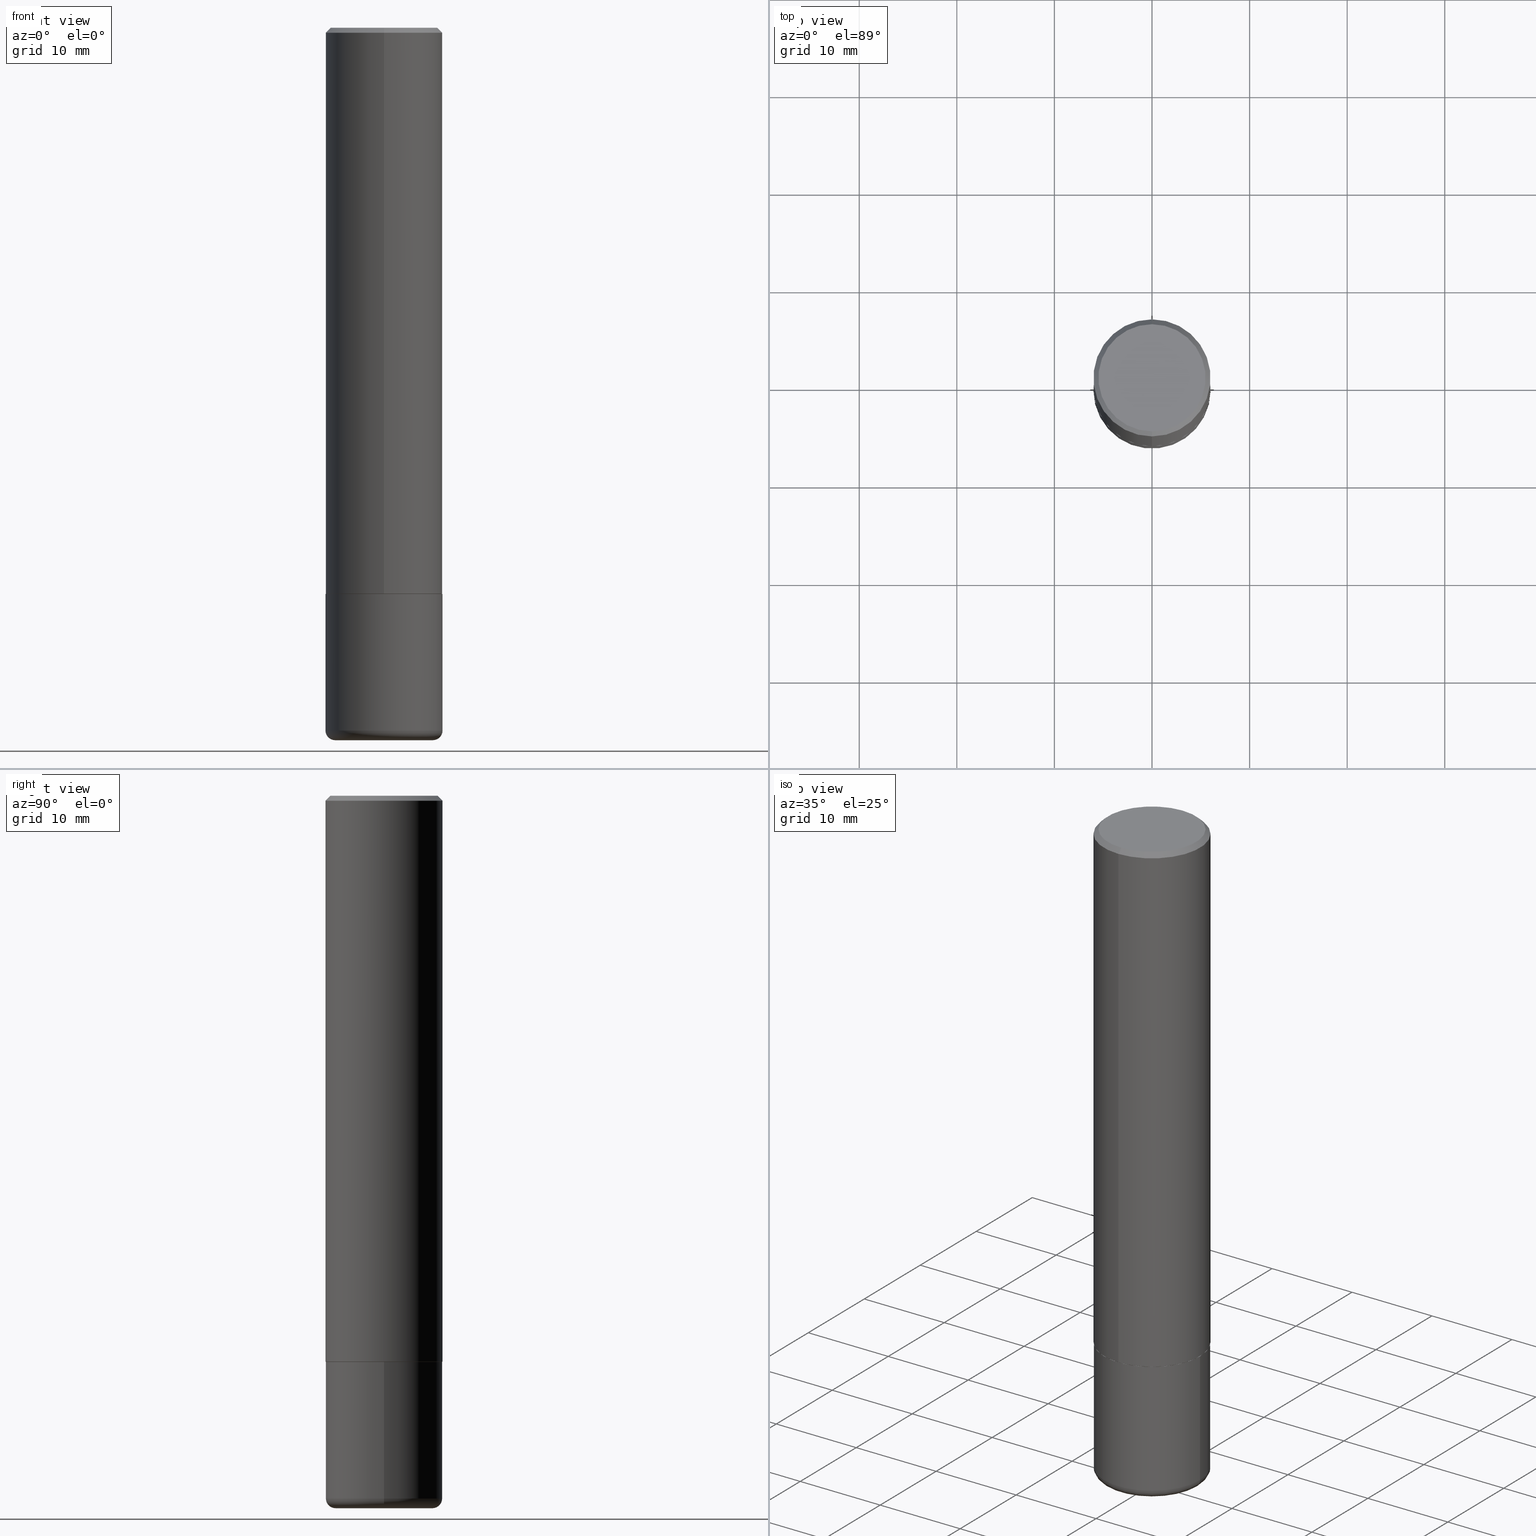
[diagram: canonical four-view strip — front | top / right | iso, engineering-drawing reading convention]
A machine part, canonical four-view strip (front | top / right | iso — engineering-drawing reading convention). The complete STEP part file that produces these views, byte-faithful:
ISO-10303-21;
HEADER;
FILE_DESCRIPTION (( 'STEP AP203' ),
    '1' );
FILE_NAME ('48011.STEP',
    '2024-03-06T19:45:03',
    ( '' ),
    ( '' ),
    'SwSTEP 2.0',
    'SolidWorks 2023',
    '' );
FILE_SCHEMA (( 'CONFIG_CONTROL_DESIGN' ));
ENDSEC;

DATA;
#1 = VERTEX_POINT ( 'NONE', #398 ) ;
#2 = DIRECTION ( 'NONE',  ( -6.982962677686265133E-15, -1.000000000000000000, 3.484499991918703113E-15 ) ) ;
#3 = DIRECTION ( 'NONE',  ( -2.446091145215684809E-29, 3.490590113930062596E-15, 1.000000000000000000 ) ) ;
#4 = ORIENTED_EDGE ( 'NONE', *, *, #369, .T. ) ;
#5 = CONICAL_SURFACE ( 'NONE', #378, 0.2361999999999999655, 0.7853981633974469467 ) ;
#6 = AXIS2_PLACEMENT_3D ( 'NONE', #11, #265, #387 ) ;
#7 = ADVANCED_FACE ( 'NONE', ( #331 ), #397, .T. ) ;
#8 = FACE_OUTER_BOUND ( 'NONE', #233, .T. ) ;
#9 = DIRECTION ( 'NONE',  ( -2.445468806185136597E-29, 3.491481338843145583E-15, 1.000000000000000000 ) ) ;
#10 = DATE_AND_TIME ( #190, #290 ) ;
#11 = CARTESIAN_POINT ( 'NONE',  ( 6.931925878012387517E-29, -9.896953003084780885E-15, -2.834600000000000009 ) ) ;
#12 = ORIENTED_EDGE ( 'NONE', *, *, #123, .F. ) ;
#13 = EDGE_CURVE ( 'NONE', #127, #279, #62, .T. ) ;
#14 = AXIS2_PLACEMENT_3D ( 'NONE', #66, #351, #258 ) ;
#15 = COORDINATED_UNIVERSAL_TIME_OFFSET ( 5, 0, .BEHIND. ) ;
#16 = VERTEX_POINT ( 'NONE', #50 ) ;
#17 = AXIS2_PLACEMENT_3D ( 'NONE', #277, #278, #405 ) ;
#18 = VECTOR ( 'NONE', #282, 39.37007874015748143 ) ;
#19 = DIRECTION ( 'NONE',  ( -2.445468806185136597E-29, 3.491481338843145583E-15, 1.000000000000000000 ) ) ;
#20 = ORIENTED_EDGE ( 'NONE', *, *, #256, .T. ) ;
#21 = DIRECTION ( 'NONE',  ( -2.445468806185136597E-29, 3.491481338843145583E-15, 1.000000000000000000 ) ) ;
#22 = ORIENTED_EDGE ( 'NONE', *, *, #275, .F. ) ;
#23 = ADVANCED_FACE ( 'NONE', ( #240 ), #149, .T. ) ;
#24 = CARTESIAN_POINT ( 'NONE',  ( 0.2362000000000000210, -1.154632878755427583E-14, -2.834600000000000009 ) ) ;
#25 = ORIENTED_EDGE ( 'NONE', *, *, #181, .T. ) ;
#26 = AXIS2_PLACEMENT_3D ( 'NONE', #341, #221, #284 ) ;
#27 = CC_DESIGN_PERSON_AND_ORGANIZATION_ASSIGNMENT ( #214, #220, ( #80 ) ) ;
#28 = DIRECTION ( 'NONE',  ( -6.982962677686265133E-15, -1.000000000000000000, 3.484499991918703113E-15 ) ) ;
#29 = DIRECTION ( 'NONE',  ( -2.445468806185136597E-29, 3.491481338843145583E-15, 1.000000000000000000 ) ) ;
#30 = ORIENTED_EDGE ( 'NONE', *, *, #75, .T. ) ;
#31 = DIRECTION ( 'NONE',  ( 1.000000000000000000, -6.982962677686270655E-15, 4.883557194083114583E-29 ) ) ;
#32 = LINE ( 'NONE', #308, #310 ) ;
#33 = EDGE_CURVE ( 'NONE', #16, #279, #211, .T. ) ;
#34 = ADVANCED_BREP_SHAPE_REPRESENTATION ( '48011', ( #112, #379, #85 ), #53 ) ;
#35 = FACE_OUTER_BOUND ( 'NONE', #350, .T. ) ;
#36 = ORIENTED_EDGE ( 'NONE', *, *, #321, .F. ) ;
#37 = SECURITY_CLASSIFICATION ( '', '', #300 ) ;
#38 = CARTESIAN_POINT ( 'NONE',  ( -1.649375784469442094E-15, -0.2362000000000082367, -2.282399999999999096 ) ) ;
#39 = ORIENTED_EDGE ( 'NONE', *, *, #90, .T. ) ;
#40 = DIRECTION ( 'NONE',  ( -2.446091145215684809E-29, 3.490590113930062596E-15, 1.000000000000000000 ) ) ;
#41 = AXIS2_PLACEMENT_3D ( 'NONE', #411, #128, #251 ) ;
#42 = DIRECTION ( 'NONE',  ( -6.982962677686265922E-15, -1.000000000000000000, 3.490590113930062596E-15 ) ) ;
#43 = DIRECTION ( 'NONE',  ( 1.000000000000000000, 0.000000000000000000, 0.000000000000000000 ) ) ;
#44 = APPLICATION_CONTEXT ( 'configuration controlled 3d designs of mechanical parts and assemblies' ) ;
#45 =( NAMED_UNIT ( * ) SI_UNIT ( $, .STERADIAN. ) SOLID_ANGLE_UNIT ( ) );
#46 = CIRCLE ( 'NONE', #268, 0.1968000000000000027 ) ;
#47 = PERSON_AND_ORGANIZATION_ROLE ( 'classification_officer' ) ;
#48 = CARTESIAN_POINT ( 'NONE',  ( 7.028277348976082113E-29, -1.003451736783520168E-14, -2.874000000000000110 ) ) ;
#49 = PERSON_AND_ORGANIZATION ( #385, #311 ) ;
#50 = CARTESIAN_POINT ( 'NONE',  ( -1.642392821791753713E-15, -0.2352000000000079583, -2.283399999999998986 ) ) ;
#51 = DIRECTION ( 'NONE',  ( -2.446091145215684809E-29, 3.490590113930062990E-15, 1.000000000000000000 ) ) ;
#52 = CIRCLE ( 'NONE', #183, 0.2351999999999999924 ) ;
#53 =( GEOMETRIC_REPRESENTATION_CONTEXT ( 3 ) GLOBAL_UNCERTAINTY_ASSIGNED_CONTEXT ( ( #361 ) ) GLOBAL_UNIT_ASSIGNED_CONTEXT ( ( #76, #269, #45 ) ) REPRESENTATION_CONTEXT ( 'NONE', 'WORKASPACE' ) );
#54 = ORIENTED_EDGE ( 'NONE', *, *, #296, .F. ) ;
#55 = CARTESIAN_POINT ( 'NONE',  ( 1.509716530915770323E-15, 0.2161999999999999478, -7.398221303294321306E-16 ) ) ;
#56 = ORIENTED_EDGE ( 'NONE', *, *, #321, .T. ) ;
#57 = CARTESIAN_POINT ( 'NONE',  ( 0.2361999999999999933, -9.621824273583934567E-15, -2.283399999999999874 ) ) ;
#58 = EDGE_CURVE ( 'NONE', #127, #288, #253, .T. ) ;
#59 = ORIENTED_EDGE ( 'NONE', *, *, #90, .F. ) ;
#60 = DIRECTION ( 'NONE',  ( -2.445468806185136877E-29, 3.491481338843145188E-15, 1.000000000000000000 ) ) ;
#61 = ORIENTED_EDGE ( 'NONE', *, *, #177, .F. ) ;
#62 = CIRCLE ( 'NONE', #274, 0.2362000000000002709 ) ;
#63 = CYLINDRICAL_SURFACE ( 'NONE', #320, 0.2361999999999999933 ) ;
#64 = CARTESIAN_POINT ( 'NONE',  ( 4.892182290431382475E-31, -6.981180227860141955E-17, -0.02000000000000005246 ) ) ;
#65 = EDGE_CURVE ( 'NONE', #279, #171, #375, .T. ) ;
#66 = CARTESIAN_POINT ( 'NONE',  ( -7.261687448191642021E-46, 1.036248157256328917E-31, 2.968690460449436484E-17 ) ) ;
#67 = ORIENTED_EDGE ( 'NONE', *, *, #296, .T. ) ;
#68 = ADVANCED_FACE ( 'NONE', ( #184 ), #302, .T. ) ;
#69 = DIRECTION ( 'NONE',  ( 5.024295867788576727E-15, 0.7071067811866224018, 0.7071067811864726327 ) ) ;
#70 = VERTEX_POINT ( 'NONE', #193 ) ;
#71 = CLOSED_SHELL ( 'NONE', ( #365, #413, #267, #68, #402, #7 ) ) ;
#72 = PERSON_AND_ORGANIZATION ( #385, #311 ) ;
#73 = CARTESIAN_POINT ( 'NONE',  ( 7.028277348976082113E-29, -1.003451736783520168E-14, -2.874000000000000110 ) ) ;
#74 = ORIENTED_EDGE ( 'NONE', *, *, #111, .T. ) ;
#75 = EDGE_CURVE ( 'NONE', #412, #97, #362, .T. ) ;
#76 =( CONVERSION_BASED_UNIT ( 'INCH', #109 ) LENGTH_UNIT ( ) NAMED_UNIT ( #390 ) );
#77 = ORIENTED_EDGE ( 'NONE', *, *, #123, .T. ) ;
#78 = CIRCLE ( 'NONE', #17, 0.2351999999999999924 ) ;
#79 = AXIS2_PLACEMENT_3D ( 'NONE', #314, #192, #31 ) ;
#80 = PRODUCT_DEFINITION_FORMATION_WITH_SPECIFIED_SOURCE ( 'ANY', '', #414, .NOT_KNOWN. ) ;
#81 = EDGE_CURVE ( 'NONE', #391, #16, #78, .T. ) ;
#82 = DESIGN_CONTEXT ( 'detailed design', #185, 'design' ) ;
#83 = EDGE_LOOP ( 'NONE', ( #270, #132, #67, #254 ) ) ;
#84 = CLOSED_SHELL ( 'NONE', ( #383, #23, #327, #191, #395, #416, #106, #140 ) ) ;
#85 = AXIS2_PLACEMENT_3D ( 'NONE', #329, #360, #43 ) ;
#86 = APPROVAL_ROLE ( '' ) ;
#87 = CARTESIAN_POINT ( 'NONE',  ( 5.583983472043140562E-29, -7.972448489114438042E-15, -2.283399999999999874 ) ) ;
#88 = APPROVAL_ROLE ( '' ) ;
#89 = DIRECTION ( 'NONE',  ( -2.446091145215684249E-29, 3.490590113930062990E-15, 1.000000000000000000 ) ) ;
#90 = EDGE_CURVE ( 'NONE', #195, #412, #175, .T. ) ;
#91 = FACE_OUTER_BOUND ( 'NONE', #303, .T. ) ;
#92 = PERSON_AND_ORGANIZATION_ROLE ( 'creator' ) ;
#93 = PLANE ( 'NONE',  #107 ) ;
#94 = ORIENTED_EDGE ( 'NONE', *, *, #65, .F. ) ;
#95 = DIRECTION ( 'NONE',  ( -6.982962677686265922E-15, -1.000000000000000000, 3.490590113930062596E-15 ) ) ;
#96 = DIRECTION ( 'NONE',  ( -2.445468806185136597E-29, 3.491481338843145583E-15, 1.000000000000000000 ) ) ;
#97 = VERTEX_POINT ( 'NONE', #346 ) ;
#98 = CIRCLE ( 'NONE', #326, 0.2361999999999999933 ) ;
#99 = VECTOR ( 'NONE', #69, 39.37007874015748143 ) ;
#100 = CARTESIAN_POINT ( 'NONE',  ( -1.620449627073634881E-15, -0.2362000000000000210, -0.01999999999999922673 ) ) ;
#101 = DIRECTION ( 'NONE',  ( -6.982962677686265922E-15, -1.000000000000000000, 3.490590113930062596E-15 ) ) ;
#102 = VERTEX_POINT ( 'NONE', #57 ) ;
#103 = LINE ( 'NONE', #319, #261 ) ;
#104 = CYLINDRICAL_SURFACE ( 'NONE', #226, 0.2362000000000001321 ) ;
#105 = ORIENTED_EDGE ( 'NONE', *, *, #58, .F. ) ;
#106 = ADVANCED_FACE ( 'NONE', ( #91 ), #93, .F. ) ;
#107 = AXIS2_PLACEMENT_3D ( 'NONE', #122, #89, #408 ) ;
#108 = CARTESIAN_POINT ( 'NONE',  ( 0.000000000000000000, 0.000000000000000000, 0.000000000000000000 ) ) ;
#109 = LENGTH_MEASURE_WITH_UNIT ( LENGTH_MEASURE( 0.02539999999999999897 ), #143 );
#110 = ORIENTED_EDGE ( 'NONE', *, *, #305, .F. ) ;
#111 = EDGE_CURVE ( 'NONE', #160, #97, #299, .T. ) ;
#112 = MANIFOLD_SOLID_BREP ( 'Body-Move/Copy2[1]', #71 ) ;
#113 = ORIENTED_EDGE ( 'NONE', *, *, #81, .T. ) ;
#114 = AXIS2_PLACEMENT_3D ( 'NONE', #262, #169, #232 ) ;
#115 = EDGE_LOOP ( 'NONE', ( #342, #4, #36, #285 ) ) ;
#116 = APPROVAL ( #201, 'UNSPECIFIED' ) ;
#117 = SHAPE_DEFINITION_REPRESENTATION ( #255, #34 ) ;
#118 = VECTOR ( 'NONE', #51, 39.37007874015748143 ) ;
#119 = CARTESIAN_POINT ( 'NONE',  ( 5.582958429840278159E-29, -7.966922876033974946E-15, -2.282399999999999984 ) ) ;
#120 = CC_DESIGN_SECURITY_CLASSIFICATION ( #37, ( #80 ) ) ;
#121 = DATE_TIME_ROLE ( 'creation_date' ) ;
#122 = CARTESIAN_POINT ( 'NONE',  ( 5.585404520985494429E-29, -7.970413466147904876E-15, -2.283399999999999874 ) ) ;
#123 = EDGE_CURVE ( 'NONE', #288, #171, #212, .T. ) ;
#124 = CARTESIAN_POINT ( 'NONE',  ( 7.028277348976082113E-29, -1.003451736783520168E-14, -2.874000000000000110 ) ) ;
#125 = COORDINATED_UNIVERSAL_TIME_OFFSET ( 5, 0, .BEHIND. ) ;
#126 = PLANE ( 'NONE',  #135 ) ;
#127 = VERTEX_POINT ( 'NONE', #373 ) ;
#128 = DIRECTION ( 'NONE',  ( -2.446091145215684809E-29, 3.490590113930062596E-15, 1.000000000000000000 ) ) ;
#129 = CALENDAR_DATE ( 2024, 6, 3 ) ;
#130 = LINE ( 'NONE', #100, #301 ) ;
#131 = CARTESIAN_POINT ( 'NONE',  ( 6.931925878012387517E-29, -9.896953003084780885E-15, -2.834600000000000009 ) ) ;
#132 = ORIENTED_EDGE ( 'NONE', *, *, #305, .T. ) ;
#133 = PRODUCT_RELATED_PRODUCT_CATEGORY ( 'detail', '', ( #414 ) ) ;
#134 = DIRECTION ( 'NONE',  ( -6.982962677686265133E-15, -1.000000000000000000, 3.484499991918703113E-15 ) ) ;
#135 = AXIS2_PLACEMENT_3D ( 'NONE', #55, #187, #344 ) ;
#136 = APPROVAL_PERSON_ORGANIZATION ( #72, #116, #164 ) ;
#137 = COORDINATED_UNIVERSAL_TIME_OFFSET ( 5, 0, .BEHIND. ) ;
#138 = CARTESIAN_POINT ( 'NONE',  ( 1.671196514507811198E-15, 0.2351999999999920266, -2.283400000000000762 ) ) ;
#139 = DIRECTION ( 'NONE',  ( -1.000000000000000000, 6.982962677686265922E-15, -4.876176775795935793E-29 ) ) ;
#140 = ADVANCED_FACE ( 'NONE', ( #370 ), #126, .F. ) ;
#141 = FACE_OUTER_BOUND ( 'NONE', #318, .T. ) ;
#142 = CONICAL_SURFACE ( 'NONE', #157, 0.2351999999999999924, 0.7853981633975507526 ) ;
#143 =( LENGTH_UNIT ( ) NAMED_UNIT ( * ) SI_UNIT ( $, .METRE. ) );
#144 = EDGE_CURVE ( 'NONE', #102, #70, #338, .T. ) ;
#145 = AXIS2_PLACEMENT_3D ( 'NONE', #154, #19, #152 ) ;
#146 = EDGE_CURVE ( 'NONE', #97, #70, #32, .T. ) ;
#147 = EDGE_LOOP ( 'NONE', ( #56, #200, #61, #94 ) ) ;
#148 = APPROVAL_STATUS ( 'not_yet_approved' ) ;
#149 = CYLINDRICAL_SURFACE ( 'NONE', #347, 0.2362000000000001321 ) ;
#150 = CONICAL_SURFACE ( 'NONE', #213, 0.2361999999999999655, 0.7853981633974469467 ) ;
#151 = DATE_AND_TIME ( #129, #281 ) ;
#152 = DIRECTION ( 'NONE',  ( 1.000000000000000000, -6.982962677686266711E-15, 4.876176775795936353E-29 ) ) ;
#153 = CALENDAR_DATE ( 2024, 6, 3 ) ;
#154 = CARTESIAN_POINT ( 'NONE',  ( 0.000000000000000000, 0.000000000000000000, 0.000000000000000000 ) ) ;
#155 = ORIENTED_EDGE ( 'NONE', *, *, #217, .F. ) ;
#156 = DIRECTION ( 'NONE',  ( -2.446091145215684809E-29, 3.490590113930062990E-15, 1.000000000000000000 ) ) ;
#157 = AXIS2_PLACEMENT_3D ( 'NONE', #358, #312, #28 ) ;
#158 = CARTESIAN_POINT ( 'NONE',  ( 0.000000000000000000, 0.000000000000000000, 0.000000000000000000 ) ) ;
#159 = CARTESIAN_POINT ( 'NONE',  ( -1.620449627073634881E-15, -0.2362000000000000210, -0.01999999999999922673 ) ) ;
#160 = VERTEX_POINT ( 'NONE', #24 ) ;
#161 = DIRECTION ( 'NONE',  ( 2.438088387897960049E-29, -3.491481338843145188E-15, -1.000000000000000000 ) ) ;
#162 = CARTESIAN_POINT ( 'NONE',  ( 0.1968000000000000027, -1.140876442280385662E-14, -2.874000000000000110 ) ) ;
#163 = EDGE_LOOP ( 'NONE', ( #389, #170 ) ) ;
#164 = APPROVAL_ROLE ( '' ) ;
#165 = DIRECTION ( 'NONE',  ( -2.445468806185136597E-29, 3.491481338843145583E-15, 1.000000000000000000 ) ) ;
#166 = ORIENTED_EDGE ( 'NONE', *, *, #146, .F. ) ;
#167 = CC_DESIGN_APPROVAL ( #334, ( #80 ) ) ;
#168 = EDGE_CURVE ( 'NONE', #160, #102, #418, .T. ) ;
#169 = DIRECTION ( 'NONE',  ( -6.982962677686266711E-15, -1.000000000000000000, 3.491481338843145583E-15 ) ) ;
#170 = ORIENTED_EDGE ( 'NONE', *, *, #250, .T. ) ;
#171 = VERTEX_POINT ( 'NONE', #159 ) ;
#172 = ORIENTED_EDGE ( 'NONE', *, *, #13, .F. ) ;
#173 = MECHANICAL_CONTEXT ( 'NONE', #44, 'mechanical' ) ;
#174 = CARTESIAN_POINT ( 'NONE',  ( -1.642392821791753713E-15, -0.2352000000000079583, -2.283399999999998986 ) ) ;
#175 = CIRCLE ( 'NONE', #234, 0.1968000000000000027 ) ;
#176 = CC_DESIGN_APPROVAL ( #316, ( #37 ) ) ;
#177 = EDGE_CURVE ( 'NONE', #171, #288, #225, .T. ) ;
#178 = CC_DESIGN_PERSON_AND_ORGANIZATION_ASSIGNMENT ( #304, #407, ( #80 ) ) ;
#179 = DATE_TIME_ROLE ( 'classification_date' ) ;
#180 = DIRECTION ( 'NONE',  ( -1.000000000000000000, 6.982962677686265922E-15, -4.876176775795935793E-29 ) ) ;
#181 = EDGE_CURVE ( 'NONE', #97, #160, #98, .T. ) ;
#182 = AXIS2_PLACEMENT_3D ( 'NONE', #243, #336, #101 ) ;
#183 = AXIS2_PLACEMENT_3D ( 'NONE', #287, #3, #134 ) ;
#184 = FACE_OUTER_BOUND ( 'NONE', #186, .T. ) ;
#185 = APPLICATION_CONTEXT ( 'configuration controlled 3d designs of mechanical parts and assemblies' ) ;
#186 = EDGE_LOOP ( 'NONE', ( #166, #25, #307, #337 ) ) ;
#187 = DIRECTION ( 'NONE',  ( 2.446091145215684249E-29, -3.490590113930062990E-15, -1.000000000000000000 ) ) ;
#188 = DIRECTION ( 'NONE',  ( -2.445468806185136597E-29, 3.491481338843145583E-15, 1.000000000000000000 ) ) ;
#189 = EDGE_LOOP ( 'NONE', ( #208, #352 ) ) ;
#190 = CALENDAR_DATE ( 2024, 6, 3 ) ;
#191 = ADVANCED_FACE ( 'NONE', ( #349 ), #5, .T. ) ;
#192 = DIRECTION ( 'NONE',  ( -2.445468806185136597E-29, 3.491481338843145583E-15, 1.000000000000000000 ) ) ;
#193 = CARTESIAN_POINT ( 'NONE',  ( -0.2361999999999999933, -7.256398804234252280E-15, -2.283399999999999874 ) ) ;
#194 = TOROIDAL_SURFACE ( 'NONE', #6, 0.1968000000000000027, 0.03940000000000005997 ) ;
#195 = VERTEX_POINT ( 'NONE', #162 ) ;
#196 = CC_DESIGN_DATE_AND_TIME_ASSIGNMENT ( #151, #121, ( #263 ) ) ;
#197 = APPLICATION_PROTOCOL_DEFINITION ( 'international standard', 'config_control_design', 1994, #185 ) ;
#198 = CARTESIAN_POINT ( 'NONE',  ( -0.1968000000000000027, -8.427410162539374195E-15, -2.874000000000000110 ) ) ;
#199 = DIRECTION ( 'NONE',  ( 2.446091145215684809E-29, -3.490590113930062596E-15, -1.000000000000000000 ) ) ;
#200 = ORIENTED_EDGE ( 'NONE', *, *, #58, .T. ) ;
#201 = APPROVAL_STATUS ( 'not_yet_approved' ) ;
#202 = DIRECTION ( 'NONE',  ( -4.851104656540957175E-15, -0.7071067811865490160, -0.7071067811865460184 ) ) ;
#203 = EDGE_CURVE ( 'NONE', #1, #207, #257, .T. ) ;
#204 = DIRECTION ( 'NONE',  ( 1.000000000000000000, -6.982962677686261977E-15, 0.000000000000000000 ) ) ;
#205 = ORIENTED_EDGE ( 'NONE', *, *, #146, .T. ) ;
#206 = DIRECTION ( 'NONE',  ( -2.446091145215684809E-29, 3.490590113930062596E-15, 1.000000000000000000 ) ) ;
#207 = VERTEX_POINT ( 'NONE', #381 ) ;
#208 = ORIENTED_EDGE ( 'NONE', *, *, #144, .T. ) ;
#209 = CC_DESIGN_DATE_AND_TIME_ASSIGNMENT ( #273, #179, ( #37 ) ) ;
#210 = CONICAL_SURFACE ( 'NONE', #367, 0.2351999999999999924, 0.7853981633975507526 ) ;
#211 = LINE ( 'NONE', #174, #392 ) ;
#212 = CIRCLE ( 'NONE', #26, 0.2361999999999999655 ) ;
#213 = AXIS2_PLACEMENT_3D ( 'NONE', #354, #228, #252 ) ;
#214 = PERSON_AND_ORGANIZATION ( #385, #311 ) ;
#215 = DIRECTION ( 'NONE',  ( 1.000000000000000000, -6.982962677686265133E-15, 0.000000000000000000 ) ) ;
#216 = APPROVAL_STATUS ( 'not_yet_approved' ) ;
#217 = EDGE_CURVE ( 'NONE', #16, #391, #52, .T. ) ;
#218 = AXIS2_PLACEMENT_3D ( 'NONE', #48, #364, #180 ) ;
#219 = CARTESIAN_POINT ( 'NONE',  ( 6.931925878012387517E-29, -9.896953003084780885E-15, -2.834600000000000009 ) ) ;
#220 = PERSON_AND_ORGANIZATION_ROLE ( 'design_supplier' ) ;
#221 = DIRECTION ( 'NONE',  ( -2.446091145215684809E-29, 3.490590113930062596E-15, 1.000000000000000000 ) ) ;
#222 = DIRECTION ( 'NONE',  ( 1.000000000000000000, -6.982962677686269077E-15, 0.000000000000000000 ) ) ;
#223 = DIRECTION ( 'NONE',  ( -2.445468806185136597E-29, 3.491481338843145583E-15, 1.000000000000000000 ) ) ;
#224 = DIRECTION ( 'NONE',  ( 1.000000000000000000, -6.982962677686265133E-15, 0.000000000000000000 ) ) ;
#225 = CIRCLE ( 'NONE', #41, 0.2361999999999999655 ) ;
#226 = AXIS2_PLACEMENT_3D ( 'NONE', #108, #206, #95 ) ;
#227 = ORIENTED_EDGE ( 'NONE', *, *, #203, .F. ) ;
#228 = DIRECTION ( 'NONE',  ( 2.446091145215684809E-29, -3.490590113930062596E-15, -1.000000000000000000 ) ) ;
#229 = EDGE_CURVE ( 'NONE', #70, #102, #393, .T. ) ;
#230 = CARTESIAN_POINT ( 'NONE',  ( 5.583983472043140562E-29, -7.972448489114438042E-15, -2.283399999999999874 ) ) ;
#231 = EDGE_LOOP ( 'NONE', ( #39, #30, #237, #54 ) ) ;
#232 = DIRECTION ( 'NONE',  ( 1.000000000000000000, -6.982962677686267499E-15, 0.000000000000000000 ) ) ;
#233 = EDGE_LOOP ( 'NONE', ( #298, #309, #323, #249 ) ) ;
#234 = AXIS2_PLACEMENT_3D ( 'NONE', #124, #29, #403 ) ;
#235 = CIRCLE ( 'NONE', #114, 0.03940000000000005997 ) ;
#236 = FACE_OUTER_BOUND ( 'NONE', #231, .T. ) ;
#237 = ORIENTED_EDGE ( 'NONE', *, *, #111, .F. ) ;
#238 = DIRECTION ( 'NONE',  ( -2.446091145215684809E-29, 3.490590113930062596E-15, 1.000000000000000000 ) ) ;
#239 = CIRCLE ( 'NONE', #14, 0.2161999999999999478 ) ;
#240 = FACE_OUTER_BOUND ( 'NONE', #147, .T. ) ;
#241 = CC_DESIGN_APPROVAL ( #116, ( #263 ) ) ;
#242 = CALENDAR_DATE ( 2024, 6, 3 ) ;
#243 = CARTESIAN_POINT ( 'NONE',  ( -7.261687448191642021E-46, 1.036248157256328917E-31, 2.968690460449436484E-17 ) ) ;
#244 = APPROVAL_DATE_TIME ( #368, #334 ) ;
#245 = CARTESIAN_POINT ( 'NONE',  ( 1.678301941865357380E-15, 0.2362000000000001321, -8.244773849102812872E-16 ) ) ;
#246 = PERSON_AND_ORGANIZATION ( #385, #311 ) ;
#247 = AXIS2_PLACEMENT_3D ( 'NONE', #230, #161, #139 ) ;
#248 = CARTESIAN_POINT ( 'NONE',  ( -0.1968000000000000027, -8.498604899108903108E-15, -2.834600000000000009 ) ) ;
#249 = ORIENTED_EDGE ( 'NONE', *, *, #256, .F. ) ;
#250 = EDGE_CURVE ( 'NONE', #207, #1, #239, .T. ) ;
#251 = DIRECTION ( 'NONE',  ( -6.982962677686265922E-15, -1.000000000000000000, 3.487819265831412139E-15 ) ) ;
#252 = DIRECTION ( 'NONE',  ( 6.982962677686265922E-15, 1.000000000000000000, -3.487819265831412139E-15 ) ) ;
#253 = LINE ( 'NONE', #245, #118 ) ;
#254 = ORIENTED_EDGE ( 'NONE', *, *, #181, .F. ) ;
#255 = PRODUCT_DEFINITION_SHAPE ( 'NONE', 'NONE',  #263 ) ;
#256 = EDGE_CURVE ( 'NONE', #1, #288, #103, .T. ) ;
#257 = CIRCLE ( 'NONE', #182, 0.2161999999999999478 ) ;
#258 = DIRECTION ( 'NONE',  ( -6.982962677686265922E-15, -1.000000000000000000, 3.490590113930062596E-15 ) ) ;
#259 = CARTESIAN_POINT ( 'NONE',  ( 5.583983472043140562E-29, -7.972448489114438042E-15, -2.283399999999999874 ) ) ;
#260 = APPROVAL_PERSON_ORGANIZATION ( #343, #334, #88 ) ;
#261 = VECTOR ( 'NONE', #382, 39.37007874015748143 ) ;
#262 = CARTESIAN_POINT ( 'NONE',  ( 0.1968000000000000027, -1.127120005805343740E-14, -2.834600000000000009 ) ) ;
#263 = PRODUCT_DEFINITION ( 'UNKNOWN', '', #80, #82 ) ;
#264 = LINE ( 'NONE', #138, #99 ) ;
#265 = DIRECTION ( 'NONE',  ( -2.445468806185136597E-29, 3.491481338843145583E-15, 1.000000000000000000 ) ) ;
#266 = AXIS2_PLACEMENT_3D ( 'NONE', #87, #188, #222 ) ;
#267 = ADVANCED_FACE ( 'NONE', ( #289 ), #376, .F. ) ;
#268 = AXIS2_PLACEMENT_3D ( 'NONE', #73, #223, #204 ) ;
#269 =( NAMED_UNIT ( * ) PLANE_ANGLE_UNIT ( ) SI_UNIT ( $, .RADIAN. ) );
#270 = ORIENTED_EDGE ( 'NONE', *, *, #75, .F. ) ;
#271 = ORIENTED_EDGE ( 'NONE', *, *, #168, .F. ) ;
#272 = EDGE_LOOP ( 'NONE', ( #294, #113, #359, #172 ) ) ;
#273 = DATE_AND_TIME ( #153, #340 ) ;
#274 = AXIS2_PLACEMENT_3D ( 'NONE', #119, #335, #330 ) ;
#275 = EDGE_CURVE ( 'NONE', #207, #171, #130, .T. ) ;
#276 = CARTESIAN_POINT ( 'NONE',  ( 0.000000000000000000, 0.000000000000000000, 0.000000000000000000 ) ) ;
#277 = CARTESIAN_POINT ( 'NONE',  ( 5.585404520985494429E-29, -7.970413466147904876E-15, -2.283399999999999874 ) ) ;
#278 = DIRECTION ( 'NONE',  ( -2.446091145215684809E-29, 3.490590113930062596E-15, 1.000000000000000000 ) ) ;
#279 = VERTEX_POINT ( 'NONE', #38 ) ;
#280 = PERSON_AND_ORGANIZATION_ROLE ( 'design_owner' ) ;
#281 = LOCAL_TIME ( 14, 45, 3.000000000000000000, #415 ) ;
#282 = DIRECTION ( 'NONE',  ( -2.445468806185136877E-29, 3.491481338843145188E-15, 1.000000000000000000 ) ) ;
#283 = DIRECTION ( 'NONE',  ( 1.000000000000000000, -6.982962677686269077E-15, 0.000000000000000000 ) ) ;
#284 = DIRECTION ( 'NONE',  ( -6.982962677686265922E-15, -1.000000000000000000, 3.487819265831412139E-15 ) ) ;
#285 = ORIENTED_EDGE ( 'NONE', *, *, #33, .F. ) ;
#286 = CARTESIAN_POINT ( 'NONE',  ( 1.674749228186612688E-15, 0.2351999999999920266, -2.283400000000000762 ) ) ;
#287 = CARTESIAN_POINT ( 'NONE',  ( 5.585404520985494429E-29, -7.970413466147904876E-15, -2.283399999999999874 ) ) ;
#288 = VERTEX_POINT ( 'NONE', #317 ) ;
#289 = FACE_OUTER_BOUND ( 'NONE', #189, .T. ) ;
#290 = LOCAL_TIME ( 14, 45, 3.000000000000000000, #137 ) ;
#291 = ORIENTED_EDGE ( 'NONE', *, *, #13, .T. ) ;
#292 = DIRECTION ( 'NONE',  ( 1.000000000000000000, -6.982962677686266711E-15, 4.876176775795936353E-29 ) ) ;
#293 = DIRECTION ( 'NONE',  ( -6.982962677686265922E-15, -1.000000000000000000, 3.469747663417773058E-15 ) ) ;
#294 = ORIENTED_EDGE ( 'NONE', *, *, #369, .F. ) ;
#295 = TOROIDAL_SURFACE ( 'NONE', #79, 0.1968000000000000027, 0.03940000000000005997 ) ;
#296 = EDGE_CURVE ( 'NONE', #195, #160, #235, .T. ) ;
#297 = CIRCLE ( 'NONE', #333, 0.2362000000000002709 ) ;
#298 = ORIENTED_EDGE ( 'NONE', *, *, #250, .F. ) ;
#299 = CIRCLE ( 'NONE', #332, 0.2361999999999999933 ) ;
#300 = SECURITY_CLASSIFICATION_LEVEL ( 'unclassified' ) ;
#301 = VECTOR ( 'NONE', #202, 39.37007874015748143 ) ;
#302 = CYLINDRICAL_SURFACE ( 'NONE', #145, 0.2361999999999999933 ) ;
#303 = EDGE_LOOP ( 'NONE', ( #155, #406 ) ) ;
#304 = PERSON_AND_ORGANIZATION ( #385, #311 ) ;
#305 = EDGE_CURVE ( 'NONE', #412, #195, #46, .T. ) ;
#306 = CARTESIAN_POINT ( 'NONE',  ( -1.649375784469496920E-15, -0.2362000000000001321, 8.244773849102812872E-16 ) ) ;
#307 = ORIENTED_EDGE ( 'NONE', *, *, #168, .T. ) ;
#308 = CARTESIAN_POINT ( 'NONE',  ( -0.2361999999999999933, 1.678301941865356591E-15, -1.161852468318208757E-29 ) ) ;
#309 = ORIENTED_EDGE ( 'NONE', *, *, #275, .T. ) ;
#310 = VECTOR ( 'NONE', #60, 39.37007874015748143 ) ;
#311 = ORGANIZATION ( 'UNSPECIFIED', 'UNSPECIFIED', '' ) ;
#312 = DIRECTION ( 'NONE',  ( -2.446091145215684809E-29, 3.490590113930062596E-15, 1.000000000000000000 ) ) ;
#313 = DIRECTION ( 'NONE',  ( 7.105427357601001859E-15, 1.000000000000000000, -3.491481338843145583E-15 ) ) ;
#314 = CARTESIAN_POINT ( 'NONE',  ( 6.931925878012387517E-29, -9.896953003084780885E-15, -2.834600000000000009 ) ) ;
#315 = DIRECTION ( 'NONE',  ( 6.982962677686265922E-15, 1.000000000000000000, -3.487819265831412139E-15 ) ) ;
#316 = APPROVAL ( #216, 'UNSPECIFIED' ) ;
#317 = CARTESIAN_POINT ( 'NONE',  ( 1.649375784469496131E-15, 0.2361999999999998823, -0.02000000000000087472 ) ) ;
#318 = EDGE_LOOP ( 'NONE', ( #105, #291, #325, #12 ) ) ;
#319 = CARTESIAN_POINT ( 'NONE',  ( 1.649375784469496131E-15, 0.2361999999999998823, -0.02000000000000087472 ) ) ;
#320 = AXIS2_PLACEMENT_3D ( 'NONE', #158, #165, #292 ) ;
#321 = EDGE_CURVE ( 'NONE', #279, #127, #297, .T. ) ;
#322 = CARTESIAN_POINT ( 'NONE',  ( 5.582958429840278159E-29, -7.966922876033974946E-15, -2.282399999999999984 ) ) ;
#323 = ORIENTED_EDGE ( 'NONE', *, *, #177, .T. ) ;
#324 = CC_DESIGN_PERSON_AND_ORGANIZATION_ASSIGNMENT ( #353, #92, ( #263 ) ) ;
#325 = ORIENTED_EDGE ( 'NONE', *, *, #65, .T. ) ;
#326 = AXIS2_PLACEMENT_3D ( 'NONE', #131, #96, #215 ) ;
#327 = ADVANCED_FACE ( 'NONE', ( #8 ), #150, .T. ) ;
#328 = CC_DESIGN_PERSON_AND_ORGANIZATION_ASSIGNMENT ( #246, #280, ( #414 ) ) ;
#329 = CARTESIAN_POINT ( 'NONE',  ( 0.000000000000000000, 0.000000000000000000, 0.000000000000000000 ) ) ;
#330 = DIRECTION ( 'NONE',  ( -6.982962677686265922E-15, -1.000000000000000000, 3.469747663417773058E-15 ) ) ;
#331 = FACE_OUTER_BOUND ( 'NONE', #355, .T. ) ;
#332 = AXIS2_PLACEMENT_3D ( 'NONE', #219, #21, #224 ) ;
#333 = AXIS2_PLACEMENT_3D ( 'NONE', #322, #417, #293 ) ;
#334 = APPROVAL ( #148, 'UNSPECIFIED' ) ;
#335 = DIRECTION ( 'NONE',  ( -2.446091145215684809E-29, 3.490590113930062596E-15, 1.000000000000000000 ) ) ;
#336 = DIRECTION ( 'NONE',  ( -2.446091145215684809E-29, 3.490590113930062596E-15, 1.000000000000000000 ) ) ;
#337 = ORIENTED_EDGE ( 'NONE', *, *, #229, .F. ) ;
#338 = CIRCLE ( 'NONE', #266, 0.2361999999999999933 ) ;
#339 = DATE_AND_TIME ( #242, #400 ) ;
#340 = LOCAL_TIME ( 14, 45, 3.000000000000000000, #404 ) ;
#341 = CARTESIAN_POINT ( 'NONE',  ( 4.892182290431382475E-31, -6.981180227860141955E-17, -0.02000000000000005246 ) ) ;
#342 = ORIENTED_EDGE ( 'NONE', *, *, #217, .T. ) ;
#343 = PERSON_AND_ORGANIZATION ( #385, #311 ) ;
#344 = DIRECTION ( 'NONE',  ( 6.982962677686265922E-15, 1.000000000000000000, -3.490590113930062990E-15 ) ) ;
#345 = EDGE_LOOP ( 'NONE', ( #22, #227, #20, #77 ) ) ;
#346 = CARTESIAN_POINT ( 'NONE',  ( -0.2362000000000000210, -8.218651061219422913E-15, -2.834600000000000009 ) ) ;
#347 = AXIS2_PLACEMENT_3D ( 'NONE', #276, #238, #42 ) ;
#348 = FACE_OUTER_BOUND ( 'NONE', #115, .T. ) ;
#349 = FACE_OUTER_BOUND ( 'NONE', #345, .T. ) ;
#350 = EDGE_LOOP ( 'NONE', ( #74, #205, #409, #271 ) ) ;
#351 = DIRECTION ( 'NONE',  ( -2.446091145215684809E-29, 3.490590113930062596E-15, 1.000000000000000000 ) ) ;
#352 = ORIENTED_EDGE ( 'NONE', *, *, #229, .T. ) ;
#353 = PERSON_AND_ORGANIZATION ( #385, #311 ) ;
#354 = CARTESIAN_POINT ( 'NONE',  ( 4.892182290431382475E-31, -6.981180227860141955E-17, -0.02000000000000005246 ) ) ;
#355 = EDGE_LOOP ( 'NONE', ( #59, #110 ) ) ;
#356 = FACE_OUTER_BOUND ( 'NONE', #83, .T. ) ;
#357 = APPROVAL_PERSON_ORGANIZATION ( #401, #316, #86 ) ;
#358 = CARTESIAN_POINT ( 'NONE',  ( 5.585404520985494429E-29, -7.970413466147904876E-15, -2.283399999999999874 ) ) ;
#359 = ORIENTED_EDGE ( 'NONE', *, *, #33, .T. ) ;
#360 = DIRECTION ( 'NONE',  ( 0.000000000000000000, 0.000000000000000000, 1.000000000000000000 ) ) ;
#361 = UNCERTAINTY_MEASURE_WITH_UNIT (LENGTH_MEASURE( 1.000000000000000082E-05 ), #76, 'distance_accuracy_value', 'NONE');
#362 = CIRCLE ( 'NONE', #399, 0.03940000000000005997 ) ;
#363 = APPLICATION_PROTOCOL_DEFINITION ( 'international standard', 'config_control_design', 1994, #44 ) ;
#364 = DIRECTION ( 'NONE',  ( 2.438088387897960049E-29, -3.491481338843145188E-15, -1.000000000000000000 ) ) ;
#365 = ADVANCED_FACE ( 'NONE', ( #35 ), #63, .T. ) ;
#366 = CC_DESIGN_PERSON_AND_ORGANIZATION_ASSIGNMENT ( #49, #47, ( #37 ) ) ;
#367 = AXIS2_PLACEMENT_3D ( 'NONE', #384, #40, #2 ) ;
#368 = DATE_AND_TIME ( #371, #388 ) ;
#369 = EDGE_CURVE ( 'NONE', #391, #127, #264, .T. ) ;
#370 = FACE_OUTER_BOUND ( 'NONE', #163, .T. ) ;
#371 = CALENDAR_DATE ( 2024, 6, 3 ) ;
#372 = DIRECTION ( 'NONE',  ( -1.000000000000000000, 7.105427357601014480E-15, 0.000000000000000000 ) ) ;
#373 = CARTESIAN_POINT ( 'NONE',  ( 1.678301941865385976E-15, 0.2361999999999923050, -2.282400000000000873 ) ) ;
#374 = APPROVAL_DATE_TIME ( #10, #116 ) ;
#375 = LINE ( 'NONE', #306, #386 ) ;
#376 = PLANE ( 'NONE',  #247 ) ;
#377 = CARTESIAN_POINT ( 'NONE',  ( 0.2361999999999999933, -1.649375784469496131E-15, 1.151752954443000088E-29 ) ) ;
#378 = AXIS2_PLACEMENT_3D ( 'NONE', #64, #199, #315 ) ;
#379 = MANIFOLD_SOLID_BREP ( 'Body-Move/Copy2[2]', #84 ) ;
#380 = FACE_OUTER_BOUND ( 'NONE', #272, .T. ) ;
#381 = CARTESIAN_POINT ( 'NONE',  ( -1.551844647095919747E-15, -0.2161999999999999478, 7.843524872361736162E-16 ) ) ;
#382 = DIRECTION ( 'NONE',  ( 4.937700262164540942E-15, 0.7071067811865441310, -0.7071067811865509034 ) ) ;
#383 = ADVANCED_FACE ( 'NONE', ( #348 ), #210, .T. ) ;
#384 = CARTESIAN_POINT ( 'NONE',  ( 5.585404520985494429E-29, -7.970413466147904876E-15, -2.283399999999999874 ) ) ;
#385 = PERSON ( 'UNSPECIFIED', 'UNSPECIFIED', 'UNSPECIFIED', ('UNSPECIFIED'), ('UNSPECIFIED'), ('UNSPECIFIED') ) ;
#386 = VECTOR ( 'NONE', #156, 39.37007874015748143 ) ;
#387 = DIRECTION ( 'NONE',  ( 1.000000000000000000, -6.982962677686270655E-15, 4.883557194083114583E-29 ) ) ;
#388 = LOCAL_TIME ( 14, 45, 3.000000000000000000, #15 ) ;
#389 = ORIENTED_EDGE ( 'NONE', *, *, #203, .T. ) ;
#390 = DIMENSIONAL_EXPONENTS ( 1.000000000000000000, 0.000000000000000000, 0.000000000000000000, 0.000000000000000000, 0.000000000000000000, 0.000000000000000000, 0.000000000000000000 ) ;
#391 = VERTEX_POINT ( 'NONE', #286 ) ;
#392 = VECTOR ( 'NONE', #394, 39.37007874015748143 ) ;
#393 = CIRCLE ( 'NONE', #410, 0.2361999999999999933 ) ;
#394 = DIRECTION ( 'NONE',  ( -4.937700262165053702E-15, -0.7071067811866175168, 0.7071067811864775177 ) ) ;
#395 = ADVANCED_FACE ( 'NONE', ( #141 ), #104, .T. ) ;
#396 = APPROVAL_DATE_TIME ( #339, #316 ) ;
#397 = PLANE ( 'NONE',  #218 ) ;
#398 = CARTESIAN_POINT ( 'NONE',  ( 1.579546157692633424E-15, 0.2161999999999999478, -7.249786780271850344E-16 ) ) ;
#399 = AXIS2_PLACEMENT_3D ( 'NONE', #248, #313, #372 ) ;
#400 = LOCAL_TIME ( 14, 45, 3.000000000000000000, #125 ) ;
#401 = PERSON_AND_ORGANIZATION ( #385, #311 ) ;
#402 = ADVANCED_FACE ( 'NONE', ( #356 ), #194, .T. ) ;
#403 = DIRECTION ( 'NONE',  ( 1.000000000000000000, -6.982962677686261977E-15, 0.000000000000000000 ) ) ;
#404 = COORDINATED_UNIVERSAL_TIME_OFFSET ( 5, 0, .BEHIND. ) ;
#405 = DIRECTION ( 'NONE',  ( -6.982962677686265133E-15, -1.000000000000000000, 3.484499991918703113E-15 ) ) ;
#406 = ORIENTED_EDGE ( 'NONE', *, *, #81, .F. ) ;
#407 = PERSON_AND_ORGANIZATION_ROLE ( 'creator' ) ;
#408 = DIRECTION ( 'NONE',  ( -6.982962677686265922E-15, -1.000000000000000000, 3.490590113930062990E-15 ) ) ;
#409 = ORIENTED_EDGE ( 'NONE', *, *, #144, .F. ) ;
#410 = AXIS2_PLACEMENT_3D ( 'NONE', #259, #9, #283 ) ;
#411 = CARTESIAN_POINT ( 'NONE',  ( 4.892182290431382475E-31, -6.981180227860141955E-17, -0.02000000000000005246 ) ) ;
#412 = VERTEX_POINT ( 'NONE', #198 ) ;
#413 = ADVANCED_FACE ( 'NONE', ( #236 ), #295, .T. ) ;
#414 = PRODUCT ( '48011', '48011', '', ( #173 ) ) ;
#415 = COORDINATED_UNIVERSAL_TIME_OFFSET ( 5, 0, .BEHIND. ) ;
#416 = ADVANCED_FACE ( 'NONE', ( #380 ), #142, .T. ) ;
#417 = DIRECTION ( 'NONE',  ( -2.446091145215684809E-29, 3.490590113930062596E-15, 1.000000000000000000 ) ) ;
#418 = LINE ( 'NONE', #377, #18 ) ;
ENDSEC;
END-ISO-10303-21;
